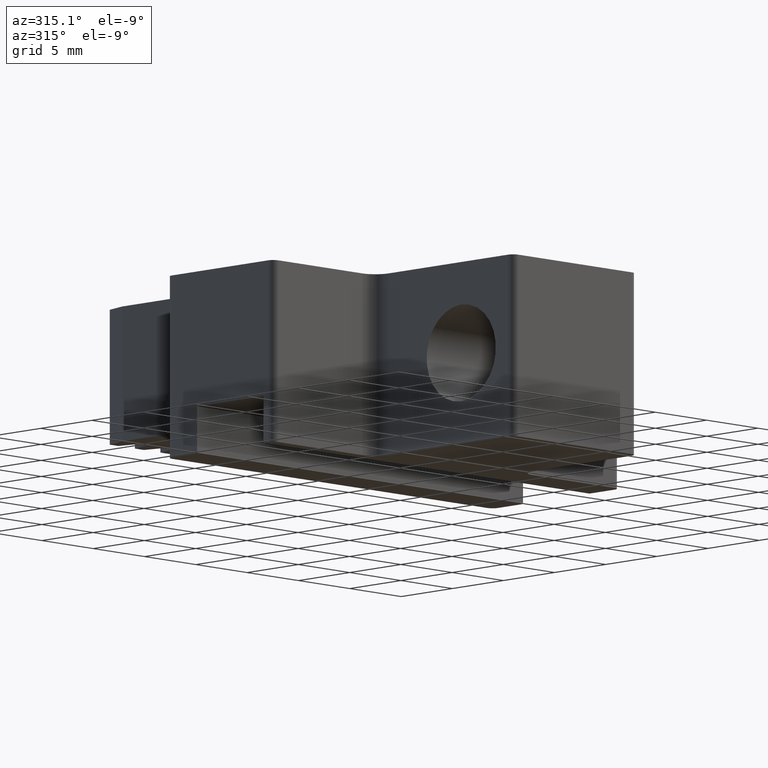
[diagram: clean part render]
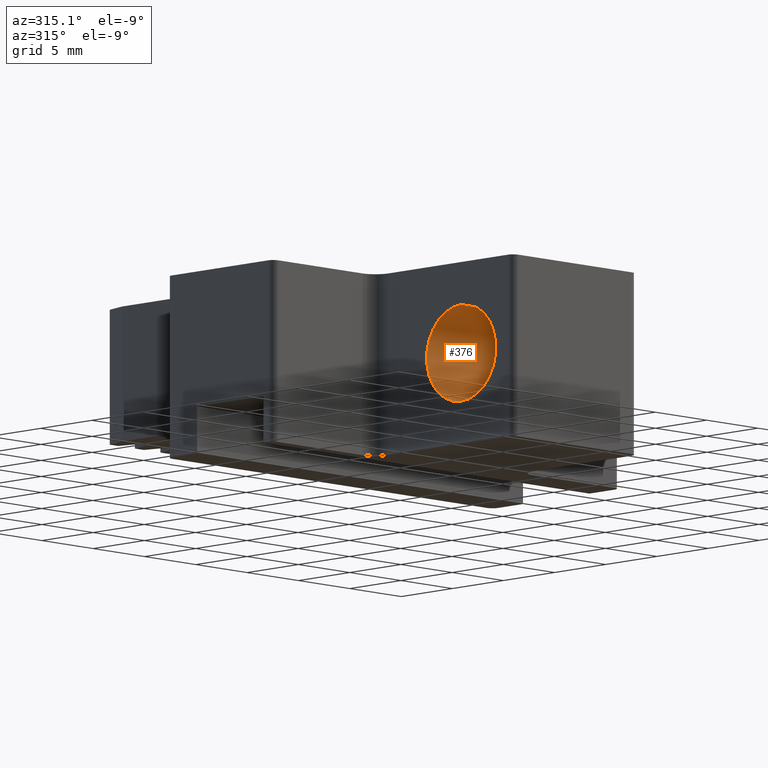
[diagram: same view with one face highlighted and labeled with its STEP entity id]
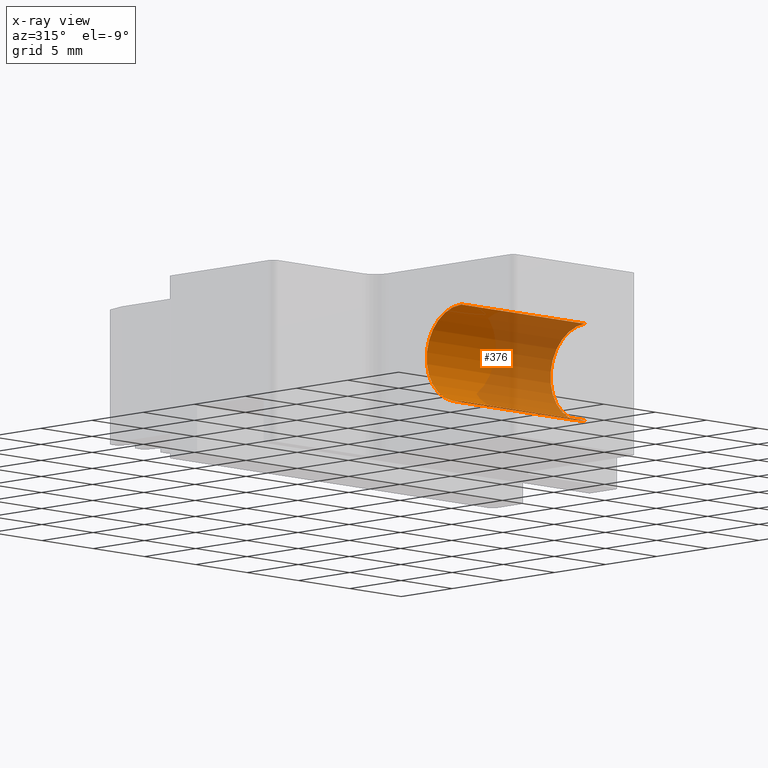
[diagram: x-ray of the same camera — body ghosted, the highlighted face saturated]
A machine part, auxiliary view. The second image highlights one B-rep face of the part: STEP entity #376.
The next image is the same camera in x-ray: the body ghosted, the highlighted face saturated — about 55% of this face is hidden behind the body in this view.
In plain terms, the highlighted cylindrical surface (partial cylindrical patch) has radius 3.3782 mm, axis along (-1, -0, -0).
Its self-contained STEP definition (entity closure, byte-faithful):
#41 = DIRECTION ( 'NONE',  ( -1.000000000000000000, -0.000000000000000000, -0.000000000000000000 ) ) ;
#103 = ORIENTED_EDGE ( 'NONE', *, *, #1479, .F. ) ;
#114 = AXIS2_PLACEMENT_3D ( 'NONE', #769, #1030, #1448 ) ;
#121 = ORIENTED_EDGE ( 'NONE', *, *, #844, .T. ) ;
#132 = CARTESIAN_POINT ( 'NONE',  ( 0.1467367399999998379, -1.073999999999999844, 0.06199999999999997874 ) ) ;
#156 = LINE ( 'NONE', #884, #736 ) ;
#262 = DIRECTION ( 'NONE',  ( 0.000000000000000000, 0.000000000000000000, 1.000000000000000000 ) ) ;
#263 = DIRECTION ( 'NONE',  ( 0.000000000000000000, 0.000000000000000000, 1.000000000000000000 ) ) ;
#343 = VERTEX_POINT ( 'NONE', #1489 ) ;
#376 = ADVANCED_FACE ( 'NONE', ( #809 ), #1082, .F. ) ;
#465 = ORIENTED_EDGE ( 'NONE', *, *, #997, .T. ) ;
#506 = CARTESIAN_POINT ( 'NONE',  ( 1.004736740000000017, -1.073999999999999844, 0.06199999999999997874 ) ) ;
#521 = AXIS2_PLACEMENT_3D ( 'NONE', #132, #553, #263 ) ;
#545 = AXIS2_PLACEMENT_3D ( 'NONE', #506, #1496, #262 ) ;
#553 = DIRECTION ( 'NONE',  ( -1.000000000000000000, 0.000000000000000000, 0.000000000000000000 ) ) ;
#684 = EDGE_CURVE ( 'NONE', #1090, #1342, #1478, .T. ) ;
#736 = VECTOR ( 'NONE', #1039, 39.37007874015748143 ) ;
#753 = EDGE_LOOP ( 'NONE', ( #103, #465, #1242, #121 ) ) ;
#756 = CARTESIAN_POINT ( 'NONE',  ( 1.004736740000000017, -1.073999999999999844, 0.1949999999999999789 ) ) ;
#769 = CARTESIAN_POINT ( 'NONE',  ( 0.6217367399999997879, -1.073999999999999844, 0.06199999999999997874 ) ) ;
#809 = FACE_OUTER_BOUND ( 'NONE', #753, .T. ) ;
#844 = EDGE_CURVE ( 'NONE', #1342, #343, #1040, .T. ) ;
#884 = CARTESIAN_POINT ( 'NONE',  ( 1.004736740000000017, -1.073999999999999844, -0.07100000000000002143 ) ) ;
#943 = VECTOR ( 'NONE', #41, 39.37007874015748143 ) ;
#968 = CARTESIAN_POINT ( 'NONE',  ( 0.1467367399999998379, -1.073999999999999844, 0.1949999999999999789 ) ) ;
#997 = EDGE_CURVE ( 'NONE', #1287, #1090, #1705, .T. ) ;
#1030 = DIRECTION ( 'NONE',  ( 1.000000000000000000, 0.000000000000000000, 0.000000000000000000 ) ) ;
#1039 = DIRECTION ( 'NONE',  ( -1.000000000000000000, -0.000000000000000000, -0.000000000000000000 ) ) ;
#1040 = CIRCLE ( 'NONE', #521, 0.1329999999999999793 ) ;
#1082 = CYLINDRICAL_SURFACE ( 'NONE', #545, 0.1329999999999999793 ) ;
#1090 = VERTEX_POINT ( 'NONE', #1781 ) ;
#1242 = ORIENTED_EDGE ( 'NONE', *, *, #684, .T. ) ;
#1287 = VERTEX_POINT ( 'NONE', #1748 ) ;
#1342 = VERTEX_POINT ( 'NONE', #968 ) ;
#1448 = DIRECTION ( 'NONE',  ( 0.000000000000000000, 0.000000000000000000, -1.000000000000000000 ) ) ;
#1478 = LINE ( 'NONE', #756, #943 ) ;
#1479 = EDGE_CURVE ( 'NONE', #1287, #343, #156, .T. ) ;
#1489 = CARTESIAN_POINT ( 'NONE',  ( 0.1467367399999998379, -1.073999999999999844, -0.07100000000000002143 ) ) ;
#1496 = DIRECTION ( 'NONE',  ( -1.000000000000000000, -0.000000000000000000, -0.000000000000000000 ) ) ;
#1705 = CIRCLE ( 'NONE', #114, 0.1330000000000000071 ) ;
#1748 = CARTESIAN_POINT ( 'NONE',  ( 0.6217367399999997879, -1.073999999999999844, -0.07100000000000002143 ) ) ;
#1781 = CARTESIAN_POINT ( 'NONE',  ( 0.6217367399999997879, -1.073999999999999844, 0.1950000000000000067 ) ) ;